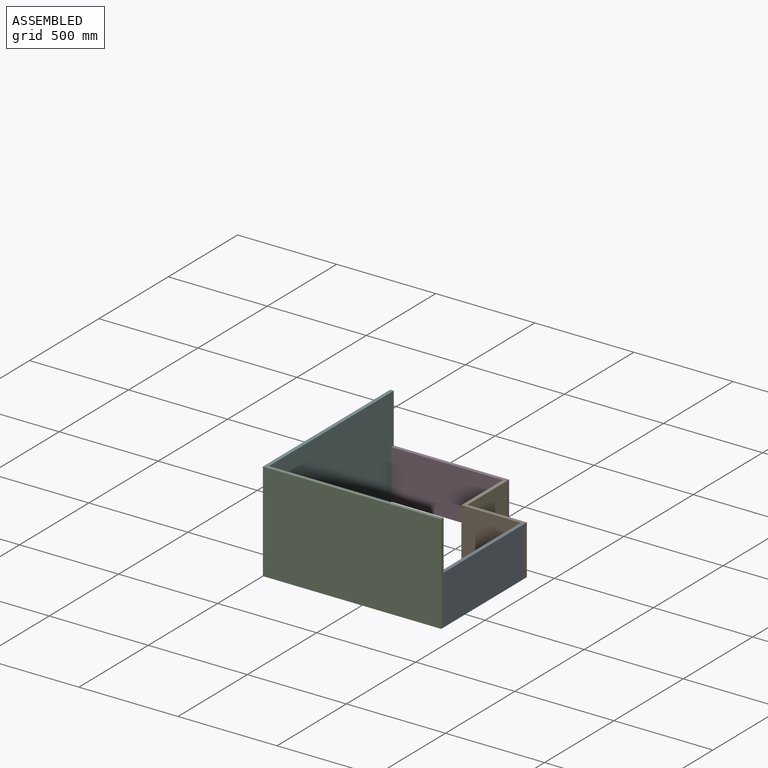
[diagram: assembled view]
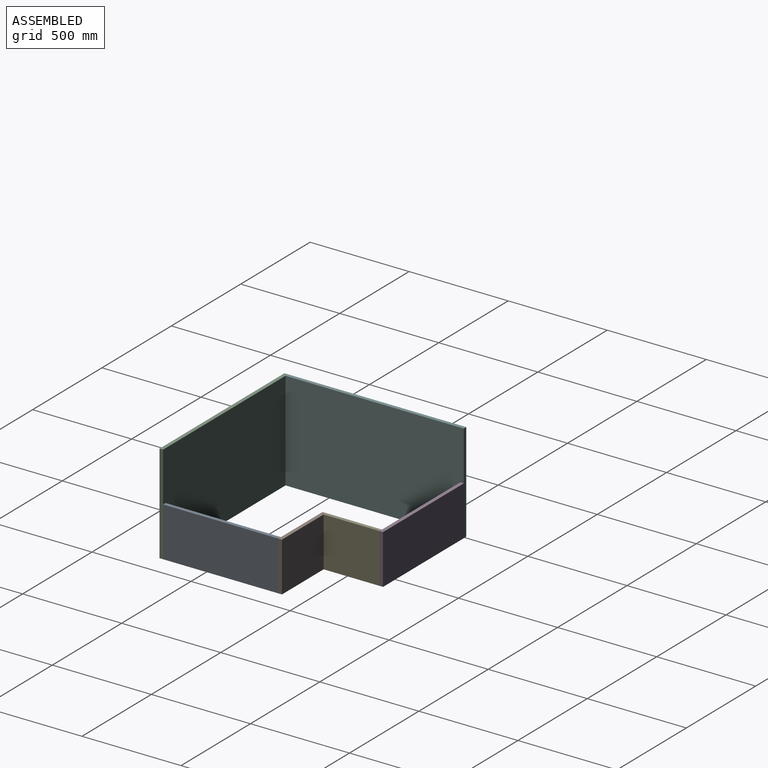
[diagram: assembled view, second angle]
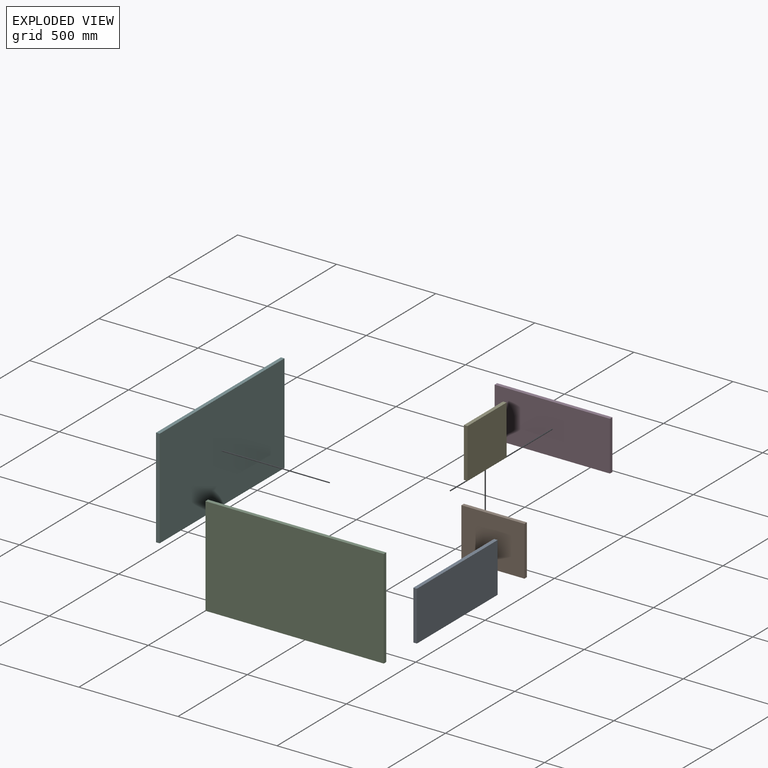
[diagram: exploded view]
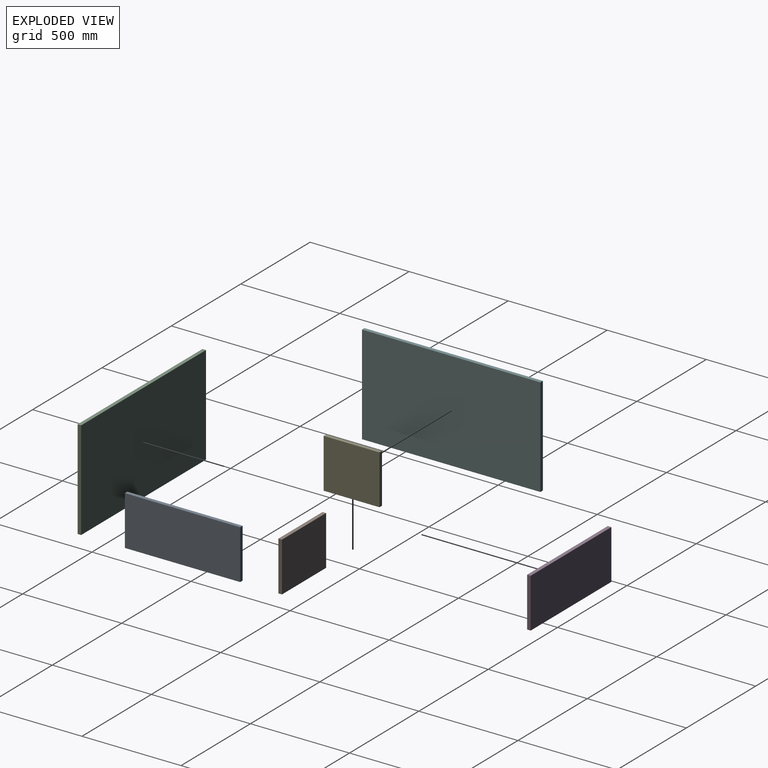
[diagram: exploded view, second angle]
ASSEMBLY  parts=6 mates=5
PART A: 6 faces, bbox 18x582x250 mm
  f0: plane 582x18mm, normal (0,0,-1), area 10476mm2, adj f1,f3,f4,f5
  f1: plane 250x18mm, normal (0,1,0), area 4500mm2, adj f0,f2,f4,f5
  f2: plane 582x18mm, normal (0,0,1), area 10476mm2, adj f1,f3,f4,f5
  f3: plane 250x18mm, normal (0,-1,0), area 4500mm2, adj f0,f2,f4,f5
  f4: plane 582x250mm, normal (1,0,0), area 145500mm2, adj f0,f1,f2,f3
  f5: plane 582x250mm, normal (-1,0,0), area 145500mm2, adj f0,f1,f2,f3
PART B: 6 faces, bbox 18x318x250 mm
  f0: plane 318x18mm, normal (0,0,-1), area 5724mm2, adj f1,f3,f4,f5
  f1: plane 250x18mm, normal (0,1,0), area 4500mm2, adj f0,f2,f4,f5
  f2: plane 318x18mm, normal (0,0,1), area 5724mm2, adj f1,f3,f4,f5
  f3: plane 250x18mm, normal (0,-1,0), area 4500mm2, adj f0,f2,f4,f5
  f4: plane 318x250mm, normal (1,0,0), area 79500mm2, adj f0,f1,f2,f3
  f5: plane 318x250mm, normal (-1,0,0), area 79500mm2, adj f0,f1,f2,f3
PART C: 6 faces, bbox 900x18x500 mm
  f0: plane 900x18mm, normal (0,0,-1), area 16200mm2, adj f1,f3,f4,f5
  f1: plane 500x18mm, normal (1,0,0), area 9000mm2, adj f0,f2,f4,f5
  f2: plane 900x18mm, normal (0,0,1), area 16200mm2, adj f1,f3,f4,f5
  f3: plane 500x18mm, normal (-1,0,0), area 9000mm2, adj f0,f2,f4,f5
  f4: plane 900x500mm, normal (0,-1,0), area 450000mm2, adj f0,f1,f2,f3
  f5: plane 900x500mm, normal (0,1,0), area 450000mm2, adj f0,f1,f2,f3
PART D: same geometry as A
PART E: 6 faces, bbox 18x282x250 mm
  f0: plane 282x18mm, normal (0,0,-1), area 5076mm2, adj f1,f3,f4,f5
  f1: plane 250x18mm, normal (0,1,0), area 4500mm2, adj f0,f2,f4,f5
  f2: plane 282x18mm, normal (0,0,1), area 5076mm2, adj f1,f3,f4,f5
  f3: plane 250x18mm, normal (0,-1,0), area 4500mm2, adj f0,f2,f4,f5
  f4: plane 282x250mm, normal (1,0,0), area 70500mm2, adj f0,f1,f2,f3
  f5: plane 282x250mm, normal (-1,0,0), area 70500mm2, adj f0,f1,f2,f3
PART F: same geometry as C
PLACE A t=(-92.26,-110.65,-467.85)mm
PLACE B rot(axis=(0,0,1),90deg) t=(-392.26,-110.65,-467.85)mm
PLACE C rot(axis=(1,0,0),0deg) t=(-74.26,-692.65,-467.85)mm
PLACE D rot(axis=(0,0,1),90deg) t=(-956.26,189.35,-467.85)mm
PLACE E t=(-392.26,189.35,-467.85)mm
PLACE F rot(axis=(0,0,-1),90deg) t=(-956.26,-692.65,-467.85)mm
MATE fastened C.f0 <-> A.f0  axis (0,0,1) through (-74.26,-692.65,-467.85)mm
MATE fastened E.f0 <-> D.f0  axis (0,0,1) through (-374.26,189.35,-467.85)mm
MATE fastened F.f0 <-> C.f0  axis (0,0,1) through (-974.26,-692.65,-467.85)mm
MATE fastened B.f0 <-> A.f0  axis (0,0,1) through (-74.26,-110.65,-467.85)mm
MATE fastened D.f0 <-> F.f0  axis (0,0,1) through (-956.26,207.35,-467.85)mm
